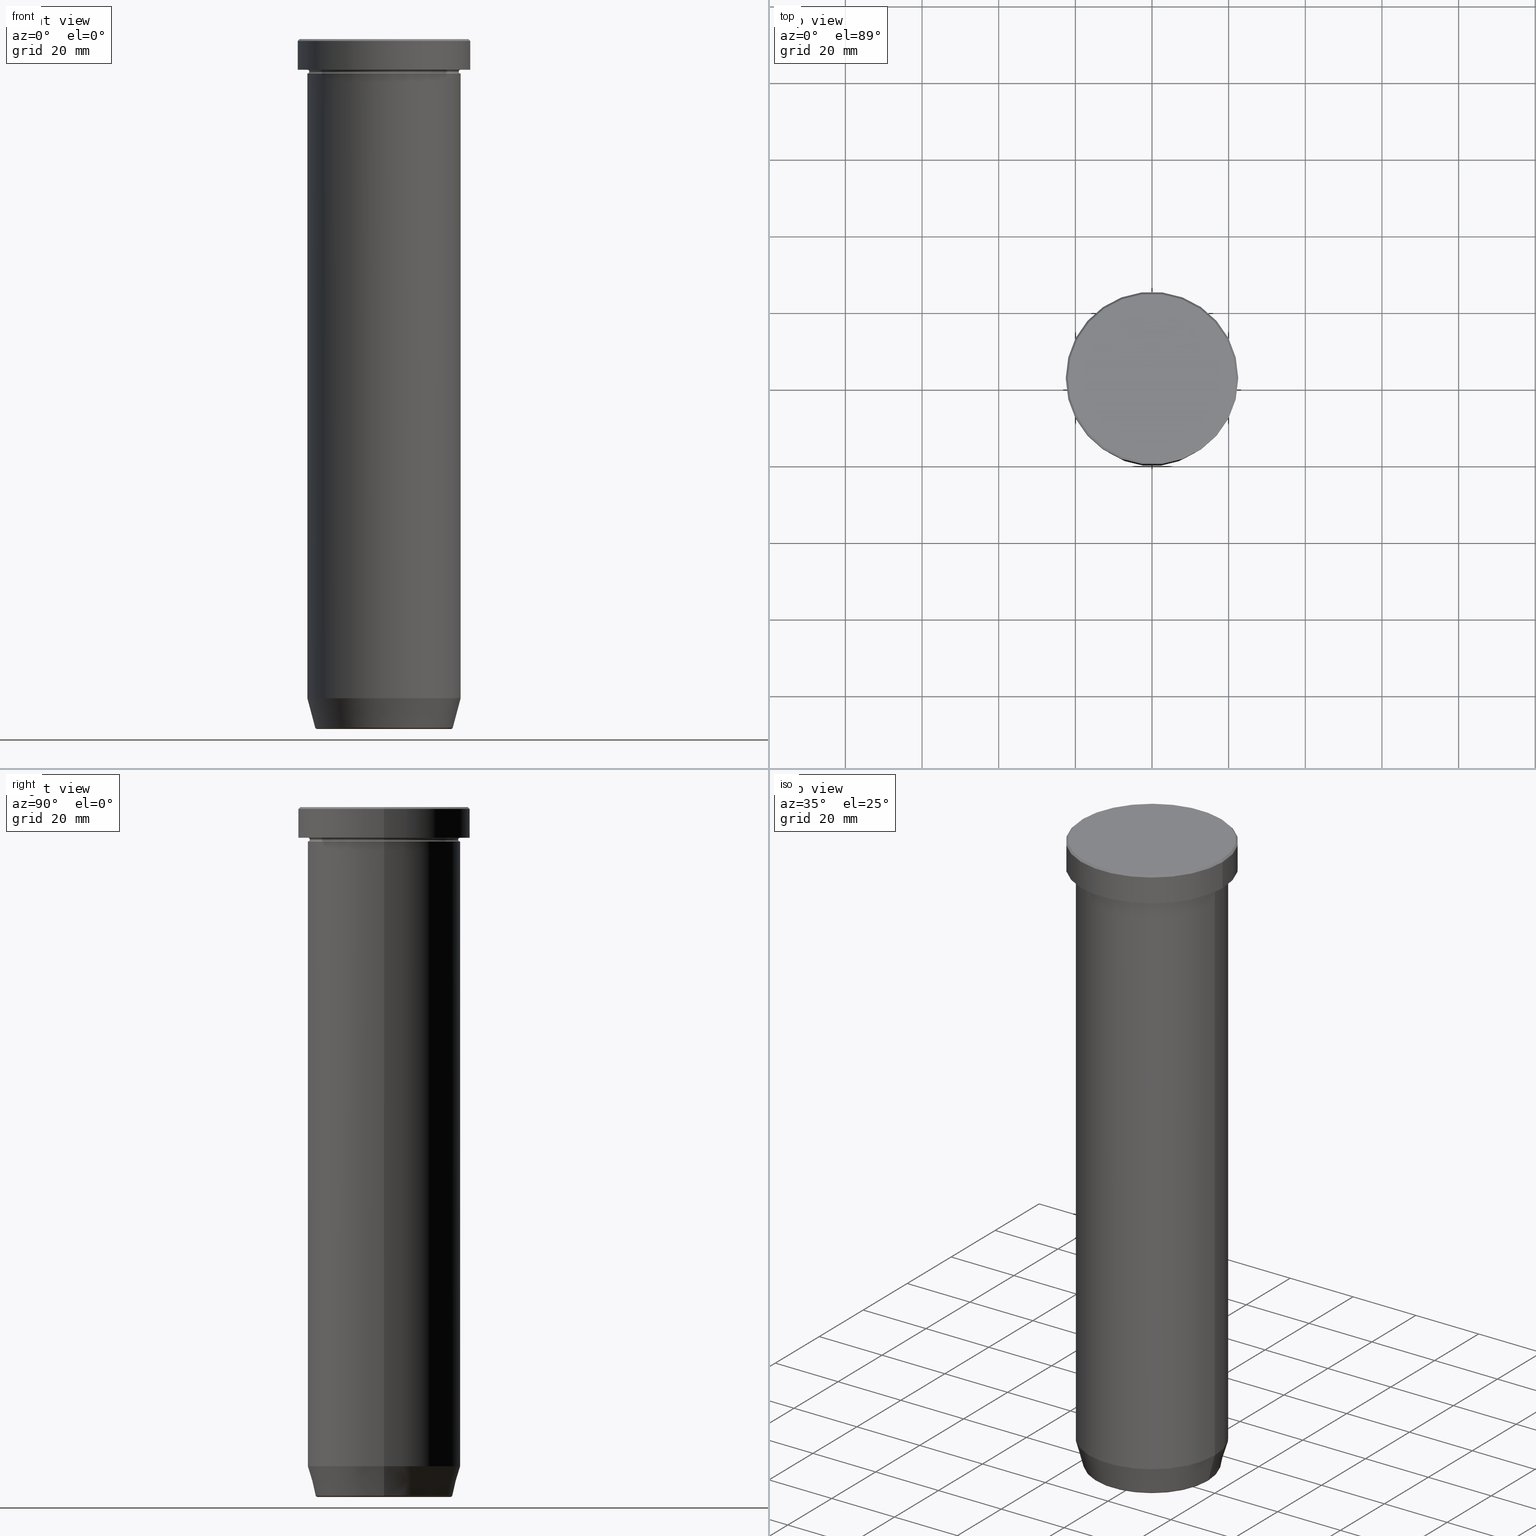
[diagram: canonical four-view strip — front | top / right | iso, engineering-drawing reading convention]
A machine part, canonical four-view strip (front | top / right | iso — engineering-drawing reading convention). The complete STEP part file that produces these views, byte-faithful:
ISO-10303-21;
HEADER;
FILE_DESCRIPTION (( 'STEP AP203' ),
    '1' );
FILE_NAME ('867e.STEP',
    '2024-01-02T19:12:58',
    ( '' ),
    ( '' ),
    'SwSTEP 2.0',
    'SolidWorks 2019',
    '' );
FILE_SCHEMA (( 'CONFIG_CONTROL_DESIGN' ));
ENDSEC;

DATA;
#1 = CARTESIAN_POINT ( 'NONE',  ( 0.000000000000000000, 0.000000000000000000, -8.999999999999998224 ) ) ;
#2 = DIRECTION ( 'NONE',  ( -0.000000000000000000, -0.000000000000000000, 1.000000000000000000 ) ) ;
#3 = AXIS2_PLACEMENT_3D ( 'NONE', #402, #166, #266 ) ;
#4 = ADVANCED_FACE ( 'NONE', ( #158 ), #428, .T. ) ;
#5 = DIRECTION ( 'NONE',  ( 1.000000000000000000, 0.000000000000000000, 0.000000000000000000 ) ) ;
#6 = CC_DESIGN_APPROVAL ( #221, ( #530 ) ) ;
#7 = EDGE_LOOP ( 'NONE', ( #441, #82, #424, #305 ) ) ;
#8 = CALENDAR_DATE ( 2024, 2, 1 ) ;
#9 = CARTESIAN_POINT ( 'NONE',  ( 0.000000000000000000, 20.00000000000000000, -45.00000000000000000 ) ) ;
#10 = ORIENTED_EDGE ( 'NONE', *, *, #352, .T. ) ;
#11 = CARTESIAN_POINT ( 'NONE',  ( -17.47274296656154391, 2.139793874632402355E-15, -179.5000000000000000 ) ) ;
#12 = CLOSED_SHELL ( 'NONE', ( #245, #48, #162, #29, #444, #4, #324, #263 ) ) ;
#13 = ORIENTED_EDGE ( 'NONE', *, *, #590, .T. ) ;
#14 = EDGE_CURVE ( 'NONE', #67, #89, #327, .T. ) ;
#15 = CARTESIAN_POINT ( 'NONE',  ( -20.00000000000000000, 2.449293598294706513E-15, -8.999999999999998224 ) ) ;
#16 = TOROIDAL_SURFACE ( 'NONE', #178, 20.00000000000000000, 0.5000000000000000000 ) ;
#17 = DIRECTION ( 'NONE',  ( -1.000000000000000000, 0.000000000000000000, -0.000000000000000000 ) ) ;
#18 = DIRECTION ( 'NONE',  ( -1.224646799147353207E-16, 1.000000000000000000, 0.000000000000000000 ) ) ;
#19 = ORIENTED_EDGE ( 'NONE', *, *, #370, .F. ) ;
#20 = DIRECTION ( 'NONE',  ( -0.000000000000000000, -0.000000000000000000, 1.000000000000000000 ) ) ;
#21 = ORIENTED_EDGE ( 'NONE', *, *, #570, .T. ) ;
#22 = EDGE_CURVE ( 'NONE', #241, #36, #417, .T. ) ;
#23 = CARTESIAN_POINT ( 'NONE',  ( 20.00000000000000000, 0.000000000000000000, -45.00000000000000000 ) ) ;
#24 = CARTESIAN_POINT ( 'NONE',  ( 20.00000000000000000, 0.000000000000000000, -45.00000000000000000 ) ) ;
#25 = AXIS2_PLACEMENT_3D ( 'NONE', #1, #285, #320 ) ;
#26 = ORIENTED_EDGE ( 'NONE', *, *, #14, .F. ) ;
#27 = DATE_TIME_ROLE ( 'creation_date' ) ;
#28 = DIRECTION ( 'NONE',  ( 1.000000000000000000, 0.000000000000000000, 0.000000000000000000 ) ) ;
#29 = ADVANCED_FACE ( 'NONE', ( #248 ), #342, .F. ) ;
#30 = PERSON_AND_ORGANIZATION_ROLE ( 'creator' ) ;
#31 = PLANE ( 'NONE',  #190 ) ;
#32 = ORIENTED_EDGE ( 'NONE', *, *, #331, .T. ) ;
#33 = CONICAL_SURFACE ( 'NONE', #539, 22.00000000000000711, 0.7853981633974482790 ) ;
#34 = CARTESIAN_POINT ( 'NONE',  ( 0.000000000000000000, 0.000000000000000000, -8.499999999999996447 ) ) ;
#35 = DIRECTION ( 'NONE',  ( 0.000000000000000000, -0.000000000000000000, 1.000000000000000000 ) ) ;
#36 = VERTEX_POINT ( 'NONE', #24 ) ;
#37 = PRODUCT_RELATED_PRODUCT_CATEGORY ( 'detail', '', ( #575 ) ) ;
#38 = CYLINDRICAL_SURFACE ( 'NONE', #508, 20.00000000000000355 ) ;
#39 = EDGE_LOOP ( 'NONE', ( #346, #55, #583, #192 ) ) ;
#40 = COORDINATED_UNIVERSAL_TIME_OFFSET ( 1, 0, .AHEAD. ) ;
#41 = FACE_OUTER_BOUND ( 'NONE', #150, .T. ) ;
#42 = SHAPE_DEFINITION_REPRESENTATION ( #119, #167 ) ;
#43 = AXIS2_PLACEMENT_3D ( 'NONE', #476, #149, #107 ) ;
#44 = CARTESIAN_POINT ( 'NONE',  ( 0.000000000000000000, 0.000000000000000000, -179.5000000000000000 ) ) ;
#45 = CC_DESIGN_PERSON_AND_ORGANIZATION_ASSIGNMENT ( #496, #239, ( #530 ) ) ;
#46 = CARTESIAN_POINT ( 'NONE',  ( 19.50000000000000000, 0.000000000000000000, -8.499999999999996447 ) ) ;
#47 = EDGE_CURVE ( 'NONE', #120, #461, #555, .T. ) ;
#48 = ADVANCED_FACE ( 'NONE', ( #64 ), #110, .T. ) ;
#49 = DATE_TIME_ROLE ( 'classification_date' ) ;
#50 = DIRECTION ( 'NONE',  ( 0.000000000000000000, 0.000000000000000000, -1.000000000000000000 ) ) ;
#51 = ORIENTED_EDGE ( 'NONE', *, *, #436, .F. ) ;
#52 = APPLICATION_CONTEXT ( 'configuration controlled 3d designs of mechanical parts and assemblies' ) ;
#53 = CIRCLE ( 'NONE', #156, 20.00000000000000000 ) ;
#54 = DIRECTION ( 'NONE',  ( -0.000000000000000000, -0.000000000000000000, 1.000000000000000000 ) ) ;
#55 = ORIENTED_EDGE ( 'NONE', *, *, #465, .T. ) ;
#56 = DATE_AND_TIME ( #8, #559 ) ;
#57 = ADVANCED_FACE ( 'NONE', ( #574, #154 ), #581, .T. ) ;
#58 = CARTESIAN_POINT ( 'NONE',  ( 0.000000000000000000, 0.000000000000000000, -45.00000000000000000 ) ) ;
#59 = ORIENTED_EDGE ( 'NONE', *, *, #456, .T. ) ;
#60 = DIRECTION ( 'NONE',  ( 1.000000000000000000, 0.000000000000000000, 0.000000000000000000 ) ) ;
#61 = AXIS2_PLACEMENT_3D ( 'NONE', #133, #132, #455 ) ;
#62 = ORIENTED_EDGE ( 'NONE', *, *, #498, .T. ) ;
#63 = TOROIDAL_SURFACE ( 'NONE', #400, 20.00000000000000000, 0.5000000000000000000 ) ;
#64 = FACE_OUTER_BOUND ( 'NONE', #39, .T. ) ;
#65 = TOROIDAL_SURFACE ( 'NONE', #147, 20.00000000000000000, 0.5000000000000000000 ) ;
#66 = CARTESIAN_POINT ( 'NONE',  ( 0.000000000000000000, 0.000000000000000000, 0.000000000000000000 ) ) ;
#67 = VERTEX_POINT ( 'NONE', #115 ) ;
#68 = EDGE_CURVE ( 'NONE', #521, #238, #111, .T. ) ;
#69 = FACE_OUTER_BOUND ( 'NONE', #470, .T. ) ;
#70 = CARTESIAN_POINT ( 'NONE',  ( 0.000000000000000000, 0.000000000000000000, -45.00000000000000000 ) ) ;
#71 = CYLINDRICAL_SURFACE ( 'NONE', #550, 20.00000000000000355 ) ;
#72 = DIRECTION ( 'NONE',  ( 0.000000000000000000, 0.000000000000000000, -1.000000000000000000 ) ) ;
#73 = AXIS2_PLACEMENT_3D ( 'NONE', #222, #595, #398 ) ;
#74 = CIRCLE ( 'NONE', #168, 20.00000000000000000 ) ;
#75 = ORIENTED_EDGE ( 'NONE', *, *, #172, .F. ) ;
#76 = PERSON_AND_ORGANIZATION ( #524, #304 ) ;
#77 = ADVANCED_FACE ( 'NONE', ( #445 ), #394, .T. ) ;
#78 = CARTESIAN_POINT ( 'NONE',  ( 0.000000000000000000, 0.000000000000000000, -45.00000000000000000 ) ) ;
#79 = DATE_AND_TIME ( #490, #519 ) ;
#80 = DIRECTION ( 'NONE',  ( -1.000000000000000000, 0.000000000000000000, 0.000000000000000000 ) ) ;
#81 = AXIS2_PLACEMENT_3D ( 'NONE', #78, #258, #17 ) ;
#82 = ORIENTED_EDGE ( 'NONE', *, *, #478, .T. ) ;
#83 = CARTESIAN_POINT ( 'NONE',  ( -20.00000000000000000, 2.449293598294706513E-15, 0.000000000000000000 ) ) ;
#84 = VECTOR ( 'NONE', #308, 1000.000000000000000 ) ;
#85 = CIRCLE ( 'NONE', #464, 20.00000000000000355 ) ;
#86 = VECTOR ( 'NONE', #482, 1000.000000000000114 ) ;
#87 = DIRECTION ( 'NONE',  ( -0.000000000000000000, -0.000000000000000000, 1.000000000000000000 ) ) ;
#88 = CARTESIAN_POINT ( 'NONE',  ( 17.95570587970608045, 0.000000000000000000, -179.6294095225512422 ) ) ;
#89 = VERTEX_POINT ( 'NONE', #497 ) ;
#90 = MANIFOLD_SOLID_BREP ( 'Zaoblit4', #12 ) ;
#91 = APPROVAL_ROLE ( '' ) ;
#92 = DIRECTION ( 'NONE',  ( -0.000000000000000000, -0.000000000000000000, 1.000000000000000000 ) ) ;
#93 = EDGE_LOOP ( 'NONE', ( #282, #264 ) ) ;
#94 = FACE_OUTER_BOUND ( 'NONE', #597, .T. ) ;
#95 = VECTOR ( 'NONE', #87, 1000.000000000000000 ) ;
#96 = DIRECTION ( 'NONE',  ( 0.000000000000000000, 0.000000000000000000, -1.000000000000000000 ) ) ;
#97 = ADVANCED_FACE ( 'NONE', ( #355 ), #547, .T. ) ;
#98 = ADVANCED_FACE ( 'NONE', ( #408 ), #31, .T. ) ;
#99 = CARTESIAN_POINT ( 'NONE',  ( 0.000000000000000000, 0.000000000000000000, -8.499999999999996447 ) ) ;
#100 = AXIS2_PLACEMENT_3D ( 'NONE', #593, #173, #359 ) ;
#101 = DIRECTION ( 'NONE',  ( 1.000000000000000000, 0.000000000000000000, 0.000000000000000000 ) ) ;
#102 = VERTEX_POINT ( 'NONE', #448 ) ;
#103 = AXIS2_PLACEMENT_3D ( 'NONE', #9, #144, #517 ) ;
#104 = CARTESIAN_POINT ( 'NONE',  ( 0.000000000000000000, 0.000000000000000000, -172.0000000000000000 ) ) ;
#105 = APPROVAL_PERSON_ORGANIZATION ( #447, #236, #91 ) ;
#106 = EDGE_LOOP ( 'NONE', ( #518, #535 ) ) ;
#107 = DIRECTION ( 'NONE',  ( -1.000000000000000000, 1.224646799147349509E-16, 0.000000000000000000 ) ) ;
#108 = ORIENTED_EDGE ( 'NONE', *, *, #379, .T. ) ;
#109 = CARTESIAN_POINT ( 'NONE',  ( -20.00000000000000355, 2.449293598294706907E-15, -172.0000000000000000 ) ) ;
#110 = CONICAL_SURFACE ( 'NONE', #526, 17.85640646055102110, 0.2617993877991491858 ) ;
#111 = CIRCLE ( 'NONE', #495, 0.5000000000000004441 ) ;
#112 = EDGE_LOOP ( 'NONE', ( #289, #301, #32, #494 ) ) ;
#113 = CARTESIAN_POINT ( 'NONE',  ( 0.000000000000000000, 0.000000000000000000, -179.6294095225512422 ) ) ;
#114 = AXIS2_PLACEMENT_3D ( 'NONE', #426, #182, #512 ) ;
#115 = CARTESIAN_POINT ( 'NONE',  ( -22.00000000000000711, 0.000000000000000000, 0.000000000000000000 ) ) ;
#116 = EDGE_CURVE ( 'NONE', #351, #403, #507, .T. ) ;
#117 = AXIS2_PLACEMENT_3D ( 'NONE', #457, #358, #546 ) ;
#118 = DIRECTION ( 'NONE',  ( -0.000000000000000000, -0.000000000000000000, 1.000000000000000000 ) ) ;
#119 = PRODUCT_DEFINITION_SHAPE ( 'NONE', 'NONE',  #343 ) ;
#120 = VERTEX_POINT ( 'NONE', #88 ) ;
#121 = CARTESIAN_POINT ( 'NONE',  ( 0.000000000000000000, 0.000000000000000000, -8.499999999999998224 ) ) ;
#122 = DIRECTION ( 'NONE',  ( -1.000000000000000000, 0.000000000000000000, -0.000000000000000000 ) ) ;
#123 = AXIS2_PLACEMENT_3D ( 'NONE', #477, #205, #532 ) ;
#124 = EDGE_LOOP ( 'NONE', ( #134, #350 ) ) ;
#125 = ADVANCED_FACE ( 'NONE', ( #94 ), #541, .T. ) ;
#126 = MECHANICAL_CONTEXT ( 'NONE', #52, 'mechanical' ) ;
#127 = ORIENTED_EDGE ( 'NONE', *, *, #138, .F. ) ;
#128 = CIRCLE ( 'NONE', #538, 22.50000000000000000 ) ;
#129 = FACE_OUTER_BOUND ( 'NONE', #475, .T. ) ;
#130 = ORIENTED_EDGE ( 'NONE', *, *, #219, .F. ) ;
#131 = PERSON_AND_ORGANIZATION_ROLE ( 'design_supplier' ) ;
#132 = DIRECTION ( 'NONE',  ( -0.000000000000000000, -0.000000000000000000, 1.000000000000000000 ) ) ;
#133 = CARTESIAN_POINT ( 'NONE',  ( 0.000000000000000000, 0.000000000000000000, 0.000000000000000000 ) ) ;
#134 = ORIENTED_EDGE ( 'NONE', *, *, #407, .T. ) ;
#135 = DIRECTION ( 'NONE',  ( 0.000000000000000000, 0.000000000000000000, -1.000000000000000000 ) ) ;
#136 = ORIENTED_EDGE ( 'NONE', *, *, #456, .F. ) ;
#137 = CARTESIAN_POINT ( 'NONE',  ( 0.000000000000000000, 0.000000000000000000, 0.000000000000000000 ) ) ;
#138 = EDGE_CURVE ( 'NONE', #351, #389, #360, .T. ) ;
#139 = DIRECTION ( 'NONE',  ( -0.000000000000000000, -0.000000000000000000, 1.000000000000000000 ) ) ;
#140 = CARTESIAN_POINT ( 'NONE',  ( 0.000000000000000000, 0.000000000000000000, -8.999999999999998224 ) ) ;
#141 = DIRECTION ( 'NONE',  ( 1.000000000000000000, 0.000000000000000000, 0.000000000000000000 ) ) ;
#142 = ORIENTED_EDGE ( 'NONE', *, *, #570, .F. ) ;
#143 = CC_DESIGN_DATE_AND_TIME_ASSIGNMENT ( #257, #27, ( #343 ) ) ;
#144 = DIRECTION ( 'NONE',  ( 0.000000000000000000, 0.000000000000000000, -1.000000000000000000 ) ) ;
#145 = ORIENTED_EDGE ( 'NONE', *, *, #331, .F. ) ;
#146 = AXIS2_PLACEMENT_3D ( 'NONE', #468, #184, #231 ) ;
#147 = AXIS2_PLACEMENT_3D ( 'NONE', #34, #218, #212 ) ;
#148 = ORIENTED_EDGE ( 'NONE', *, *, #307, .T. ) ;
#149 = DIRECTION ( 'NONE',  ( 1.224646799147353207E-16, 1.000000000000000000, 0.000000000000000000 ) ) ;
#150 = EDGE_LOOP ( 'NONE', ( #568, #26, #565, #51 ) ) ;
#151 = ADVANCED_FACE ( 'NONE', ( #41 ), #174, .T. ) ;
#152 = DIRECTION ( 'NONE',  ( 1.000000000000000000, 0.000000000000000000, 0.000000000000000000 ) ) ;
#153 = EDGE_CURVE ( 'NONE', #296, #102, #439, .T. ) ;
#154 = FACE_OUTER_BOUND ( 'NONE', #420, .T. ) ;
#155 = DIRECTION ( 'NONE',  ( 1.000000000000000000, 0.000000000000000000, 0.000000000000000000 ) ) ;
#156 = AXIS2_PLACEMENT_3D ( 'NONE', #140, #471, #281 ) ;
#157 = AXIS2_PLACEMENT_3D ( 'NONE', #160, #206, #60 ) ;
#158 = FACE_OUTER_BOUND ( 'NONE', #7, .T. ) ;
#159 = VECTOR ( 'NONE', #484, 1000.000000000000000 ) ;
#160 = CARTESIAN_POINT ( 'NONE',  ( 0.000000000000000000, 0.000000000000000000, -8.499999999999996447 ) ) ;
#161 = CARTESIAN_POINT ( 'NONE',  ( 0.000000000000000000, 22.50000000000000000, -7.999999999999998224 ) ) ;
#162 = ADVANCED_FACE ( 'NONE', ( #129 ), #38, .T. ) ;
#163 = DIRECTION ( 'NONE',  ( 0.000000000000000000, 0.000000000000000000, -1.000000000000000000 ) ) ;
#164 = ORIENTED_EDGE ( 'NONE', *, *, #116, .F. ) ;
#165 = COORDINATED_UNIVERSAL_TIME_OFFSET ( 1, 0, .AHEAD. ) ;
#166 = DIRECTION ( 'NONE',  ( -0.000000000000000000, -0.000000000000000000, 1.000000000000000000 ) ) ;
#167 = ADVANCED_BREP_SHAPE_REPRESENTATION ( '867e', ( #274, #90, #117 ), #481 ) ;
#168 = AXIS2_PLACEMENT_3D ( 'NONE', #254, #118, #580 ) ;
#169 = CARTESIAN_POINT ( 'NONE',  ( -22.50000000000000000, 2.755455298081544778E-15, 0.000000000000000000 ) ) ;
#170 = DIRECTION ( 'NONE',  ( 1.000000000000000000, 0.000000000000000000, 0.000000000000000000 ) ) ;
#171 = DESIGN_CONTEXT ( 'detailed design', #313, 'design' ) ;
#172 = EDGE_CURVE ( 'NONE', #438, #120, #223, .T. ) ;
#173 = DIRECTION ( 'NONE',  ( -0.000000000000000000, -0.000000000000000000, 1.000000000000000000 ) ) ;
#174 = CONICAL_SURFACE ( 'NONE', #514, 22.00000000000000711, 0.7853981633974482790 ) ;
#175 = ORIENTED_EDGE ( 'NONE', *, *, #309, .T. ) ;
#176 =( NAMED_UNIT ( * ) PLANE_ANGLE_UNIT ( ) SI_UNIT ( $, .RADIAN. ) );
#177 = LINE ( 'NONE', #551, #84 ) ;
#178 = AXIS2_PLACEMENT_3D ( 'NONE', #121, #243, #249 ) ;
#179 = ORIENTED_EDGE ( 'NONE', *, *, #68, .T. ) ;
#180 = DIRECTION ( 'NONE',  ( 1.000000000000000000, 0.000000000000000000, 0.000000000000000000 ) ) ;
#181 = EDGE_CURVE ( 'NONE', #238, #316, #586, .T. ) ;
#182 = DIRECTION ( 'NONE',  ( -0.000000000000000000, -0.000000000000000000, 1.000000000000000000 ) ) ;
#183 = COORDINATED_UNIVERSAL_TIME_OFFSET ( 1, 0, .AHEAD. ) ;
#184 = DIRECTION ( 'NONE',  ( -0.000000000000000000, -0.000000000000000000, 1.000000000000000000 ) ) ;
#185 = AXIS2_PLACEMENT_3D ( 'NONE', #113, #523, #571 ) ;
#186 = CC_DESIGN_DATE_AND_TIME_ASSIGNMENT ( #376, #49, ( #530 ) ) ;
#187 = CARTESIAN_POINT ( 'NONE',  ( 20.00000000000000355, 0.000000000000000000, 0.000000000000000000 ) ) ;
#188 = ORIENTED_EDGE ( 'NONE', *, *, #479, .F. ) ;
#189 = EDGE_LOOP ( 'NONE', ( #195, #273, #577, #75 ) ) ;
#190 = AXIS2_PLACEMENT_3D ( 'NONE', #501, #35, #319 ) ;
#191 = CARTESIAN_POINT ( 'NONE',  ( -17.47274296656154391, 2.169366823916869292E-15, -180.0000000000000000 ) ) ;
#192 = ORIENTED_EDGE ( 'NONE', *, *, #544, .F. ) ;
#193 = CIRCLE ( 'NONE', #558, 0.5000000000000004441 ) ;
#194 = CARTESIAN_POINT ( 'NONE',  ( 20.00000000000000000, 0.000000000000000000, -8.999999999999998224 ) ) ;
#195 = ORIENTED_EDGE ( 'NONE', *, *, #217, .F. ) ;
#196 = EDGE_CURVE ( 'NONE', #491, #241, #177, .T. ) ;
#197 = EDGE_CURVE ( 'NONE', #89, #67, #529, .T. ) ;
#198 = DIRECTION ( 'NONE',  ( -1.000000000000000000, 0.000000000000000000, 0.000000000000000000 ) ) ;
#199 = DIRECTION ( 'NONE',  ( -0.000000000000000000, -0.000000000000000000, 1.000000000000000000 ) ) ;
#200 = FACE_OUTER_BOUND ( 'NONE', #244, .T. ) ;
#201 = AXIS2_PLACEMENT_3D ( 'NONE', #314, #220, #405 ) ;
#202 = EDGE_LOOP ( 'NONE', ( #553, #409, #108, #542 ) ) ;
#203 = CARTESIAN_POINT ( 'NONE',  ( 0.000000000000000000, 0.000000000000000000, 0.000000000000000000 ) ) ;
#204 = VECTOR ( 'NONE', #374, 1000.000000000000000 ) ;
#205 = DIRECTION ( 'NONE',  ( -0.000000000000000000, -0.000000000000000000, 1.000000000000000000 ) ) ;
#206 = DIRECTION ( 'NONE',  ( -0.000000000000000000, -0.000000000000000000, 1.000000000000000000 ) ) ;
#207 = ORIENTED_EDGE ( 'NONE', *, *, #196, .T. ) ;
#208 = ORIENTED_EDGE ( 'NONE', *, *, #479, .T. ) ;
#209 = PERSON_AND_ORGANIZATION ( #524, #304 ) ;
#210 = DIRECTION ( 'NONE',  ( 0.000000000000000000, -1.000000000000000000, 0.000000000000000000 ) ) ;
#211 = AXIS2_PLACEMENT_3D ( 'NONE', #70, #572, #293 ) ;
#212 = DIRECTION ( 'NONE',  ( 1.000000000000000000, 0.000000000000000000, 0.000000000000000000 ) ) ;
#213 = CARTESIAN_POINT ( 'NONE',  ( 0.000000000000000000, 0.000000000000000000, -8.499999999999996447 ) ) ;
#214 = AXIS2_PLACEMENT_3D ( 'NONE', #380, #377, #141 ) ;
#215 = APPROVAL_PERSON_ORGANIZATION ( #554, #221, #466 ) ;
#216 = ORIENTED_EDGE ( 'NONE', *, *, #68, .F. ) ;
#217 = EDGE_CURVE ( 'NONE', #318, #438, #510, .T. ) ;
#218 = DIRECTION ( 'NONE',  ( -0.000000000000000000, -0.000000000000000000, 1.000000000000000000 ) ) ;
#219 = EDGE_CURVE ( 'NONE', #316, #238, #412, .T. ) ;
#220 = DIRECTION ( 'NONE',  ( -0.000000000000000000, -0.000000000000000000, 1.000000000000000000 ) ) ;
#221 = APPROVAL ( #563, 'NEUR�EN�' ) ;
#222 = CARTESIAN_POINT ( 'NONE',  ( 0.000000000000000000, 0.000000000000000000, -7.999999999999998224 ) ) ;
#223 = CIRCLE ( 'NONE', #291, 0.5000000000000004441 ) ;
#224 = EDGE_LOOP ( 'NONE', ( #381, #234, #21, #505 ) ) ;
#225 = DIRECTION ( 'NONE',  ( -0.000000000000000000, -0.000000000000000000, 1.000000000000000000 ) ) ;
#226 = CARTESIAN_POINT ( 'NONE',  ( 0.000000000000000000, 0.000000000000000000, -7.999999999999998224 ) ) ;
#227 = ADVANCED_FACE ( 'NONE', ( #261 ), #63, .F. ) ;
#228 = UNCERTAINTY_MEASURE_WITH_UNIT (LENGTH_MEASURE( 1.000000000000000082E-05 ), #592, 'distance_accuracy_value', 'NONE');
#229 = AXIS2_PLACEMENT_3D ( 'NONE', #11, #329, #240 ) ;
#230 = AXIS2_PLACEMENT_3D ( 'NONE', #295, #18, #292 ) ;
#231 = DIRECTION ( 'NONE',  ( 1.000000000000000000, 0.000000000000000000, 0.000000000000000000 ) ) ;
#232 = CARTESIAN_POINT ( 'NONE',  ( 22.00000000000000711, 2.694222958124177598E-15, 0.000000000000000000 ) ) ;
#233 = FACE_OUTER_BOUND ( 'NONE', #548, .T. ) ;
#234 = ORIENTED_EDGE ( 'NONE', *, *, #587, .T. ) ;
#235 = AXIS2_PLACEMENT_3D ( 'NONE', #411, #317, #599 ) ;
#236 = APPROVAL ( #503, 'NEUR�EN�' ) ;
#237 = FACE_OUTER_BOUND ( 'NONE', #430, .T. ) ;
#238 = VERTEX_POINT ( 'NONE', #451 ) ;
#239 = PERSON_AND_ORGANIZATION_ROLE ( 'classification_officer' ) ;
#240 = DIRECTION ( 'NONE',  ( -1.000000000000000000, 1.224646799147349509E-16, 0.000000000000000000 ) ) ;
#241 = VERTEX_POINT ( 'NONE', #357 ) ;
#242 = AXIS2_PLACEMENT_3D ( 'NONE', #528, #199, #537 ) ;
#243 = DIRECTION ( 'NONE',  ( 0.000000000000000000, 0.000000000000000000, -1.000000000000000000 ) ) ;
#244 = EDGE_LOOP ( 'NONE', ( #499, #208, #250, #216 ) ) ;
#245 = ADVANCED_FACE ( 'NONE', ( #520 ), #419, .T. ) ;
#246 = AXIS2_PLACEMENT_3D ( 'NONE', #504, #366, #80 ) ;
#247 = LINE ( 'NONE', #393, #284 ) ;
#248 = FACE_OUTER_BOUND ( 'NONE', #310, .T. ) ;
#249 = DIRECTION ( 'NONE',  ( -1.000000000000000000, 0.000000000000000000, 0.000000000000000000 ) ) ;
#250 = ORIENTED_EDGE ( 'NONE', *, *, #181, .F. ) ;
#251 = FACE_OUTER_BOUND ( 'NONE', #202, .T. ) ;
#252 = ORIENTED_EDGE ( 'NONE', *, *, #371, .T. ) ;
#253 = EDGE_LOOP ( 'NONE', ( #515, #13, #10, #142 ) ) ;
#254 = CARTESIAN_POINT ( 'NONE',  ( 0.000000000000000000, 0.000000000000000000, -45.00000000000000000 ) ) ;
#255 = AXIS2_PLACEMENT_3D ( 'NONE', #99, #2, #372 ) ;
#256 = DIRECTION ( 'NONE',  ( 1.000000000000000000, 0.000000000000000000, 0.000000000000000000 ) ) ;
#257 = DATE_AND_TIME ( #589, #454 ) ;
#258 = DIRECTION ( 'NONE',  ( 0.000000000000000000, 0.000000000000000000, -1.000000000000000000 ) ) ;
#259 = ORIENTED_EDGE ( 'NONE', *, *, #138, .T. ) ;
#260 = DATE_AND_TIME ( #353, #442 ) ;
#261 = FACE_OUTER_BOUND ( 'NONE', #486, .T. ) ;
#262 = EDGE_CURVE ( 'NONE', #318, #461, #283, .T. ) ;
#263 = ADVANCED_FACE ( 'NONE', ( #233 ), #339, .T. ) ;
#264 = ORIENTED_EDGE ( 'NONE', *, *, #219, .T. ) ;
#265 = APPROVAL_DATE_TIME ( #79, #236 ) ;
#266 = DIRECTION ( 'NONE',  ( 1.000000000000000000, 0.000000000000000000, 0.000000000000000000 ) ) ;
#267 = AXIS2_PLACEMENT_3D ( 'NONE', #410, #225, #584 ) ;
#268 = DIRECTION ( 'NONE',  ( -1.000000000000000000, 0.000000000000000000, 0.000000000000000000 ) ) ;
#269 = ORIENTED_EDGE ( 'NONE', *, *, #22, .T. ) ;
#270 = EDGE_CURVE ( 'NONE', #446, #403, #567, .T. ) ;
#271 = COORDINATED_UNIVERSAL_TIME_OFFSET ( 1, 0, .AHEAD. ) ;
#272 = DIRECTION ( 'NONE',  ( -0.000000000000000000, -0.000000000000000000, 1.000000000000000000 ) ) ;
#273 = ORIENTED_EDGE ( 'NONE', *, *, #262, .T. ) ;
#274 = MANIFOLD_SOLID_BREP ( 'Zkosen�1', #347 ) ;
#275 = DIRECTION ( 'NONE',  ( -0.000000000000000000, -0.000000000000000000, 1.000000000000000000 ) ) ;
#276 = AXIS2_PLACEMENT_3D ( 'NONE', #58, #275, #463 ) ;
#277 = CALENDAR_DATE ( 2024, 2, 1 ) ;
#278 = CARTESIAN_POINT ( 'NONE',  ( 20.00000000000000000, 0.000000000000000000, 0.000000000000000000 ) ) ;
#279 = CARTESIAN_POINT ( 'NONE',  ( -22.50000000000000000, 2.755455298081544778E-15, -0.4999999999999935052 ) ) ;
#280 = EDGE_CURVE ( 'NONE', #403, #446, #53, .T. ) ;
#281 = DIRECTION ( 'NONE',  ( 1.000000000000000000, 0.000000000000000000, 0.000000000000000000 ) ) ;
#282 = ORIENTED_EDGE ( 'NONE', *, *, #181, .T. ) ;
#283 = CIRCLE ( 'NONE', #229, 0.5000000000000004441 ) ;
#284 = VECTOR ( 'NONE', #383, 1000.000000000000000 ) ;
#285 = DIRECTION ( 'NONE',  ( -0.000000000000000000, -0.000000000000000000, 1.000000000000000000 ) ) ;
#286 = ORIENTED_EDGE ( 'NONE', *, *, #407, .F. ) ;
#287 = EDGE_CURVE ( 'NONE', #89, #361, #333, .T. ) ;
#288 = DIRECTION ( 'NONE',  ( -1.000000000000000000, 0.000000000000000000, 0.000000000000000000 ) ) ;
#289 = ORIENTED_EDGE ( 'NONE', *, *, #498, .F. ) ;
#290 = AXIS2_PLACEMENT_3D ( 'NONE', #534, #299, #485 ) ;
#291 = AXIS2_PLACEMENT_3D ( 'NONE', #545, #210, #135 ) ;
#292 = DIRECTION ( 'NONE',  ( -1.000000000000000000, -1.224646799147349509E-16, 0.000000000000000000 ) ) ;
#293 = DIRECTION ( 'NONE',  ( 1.000000000000000000, 0.000000000000000000, 0.000000000000000000 ) ) ;
#294 = AXIS2_PLACEMENT_3D ( 'NONE', #44, #54, #101 ) ;
#295 = CARTESIAN_POINT ( 'NONE',  ( 20.00000000000000000, 2.449293598294706513E-15, -8.499999999999998224 ) ) ;
#296 = VERTEX_POINT ( 'NONE', #414 ) ;
#297 = APPROVAL ( #543, 'NEUR�EN�' ) ;
#298 = CARTESIAN_POINT ( 'NONE',  ( 17.85640646055102110, 0.000000000000000000, -180.0000000000000000 ) ) ;
#299 = DIRECTION ( 'NONE',  ( -0.000000000000000000, -0.000000000000000000, 1.000000000000000000 ) ) ;
#300 = DIRECTION ( 'NONE',  ( 0.000000000000000000, 0.000000000000000000, -1.000000000000000000 ) ) ;
#301 = ORIENTED_EDGE ( 'NONE', *, *, #371, .F. ) ;
#302 = PERSON_AND_ORGANIZATION_ROLE ( 'design_owner' ) ;
#303 = AXIS2_PLACEMENT_3D ( 'NONE', #573, #300, #531 ) ;
#304 = ORGANIZATION ( 'NEUR�EN�', 'NEUR�EN�', '' ) ;
#305 = ORIENTED_EDGE ( 'NONE', *, *, #323, .F. ) ;
#306 = ORIENTED_EDGE ( 'NONE', *, *, #587, .F. ) ;
#307 = EDGE_CURVE ( 'NONE', #389, #446, #368, .T. ) ;
#308 = DIRECTION ( 'NONE',  ( -0.000000000000000000, -0.000000000000000000, 1.000000000000000000 ) ) ;
#309 = EDGE_CURVE ( 'NONE', #336, #491, #85, .T. ) ;
#310 = EDGE_LOOP ( 'NONE', ( #59, #269 ) ) ;
#311 = SECURITY_CLASSIFICATION_LEVEL ( 'unclassified' ) ;
#312 = CARTESIAN_POINT ( 'NONE',  ( 0.000000000000000000, 0.000000000000000000, 0.000000000000000000 ) ) ;
#313 = APPLICATION_CONTEXT ( 'configuration controlled 3d designs of mechanical parts and assemblies' ) ;
#314 = CARTESIAN_POINT ( 'NONE',  ( 0.000000000000000000, 0.000000000000000000, 0.000000000000000000 ) ) ;
#315 = APPROVAL_PERSON_ORGANIZATION ( #209, #297, #397 ) ;
#316 = VERTEX_POINT ( 'NONE', #564 ) ;
#317 = DIRECTION ( 'NONE',  ( -0.000000000000000000, -0.000000000000000000, 1.000000000000000000 ) ) ;
#318 = VERTEX_POINT ( 'NONE', #191 ) ;
#319 = DIRECTION ( 'NONE',  ( 1.000000000000000000, 0.000000000000000000, 0.000000000000000000 ) ) ;
#320 = DIRECTION ( 'NONE',  ( 1.000000000000000000, 0.000000000000000000, 0.000000000000000000 ) ) ;
#321 = AXIS2_PLACEMENT_3D ( 'NONE', #66, #527, #155 ) ;
#322 = CARTESIAN_POINT ( 'NONE',  ( -20.00000000000000000, 2.449293598294706513E-15, -45.00000000000000000 ) ) ;
#323 = EDGE_CURVE ( 'NONE', #491, #336, #500, .T. ) ;
#324 = ADVANCED_FACE ( 'NONE', ( #560 ), #467, .F. ) ;
#325 = DIRECTION ( 'NONE',  ( 1.000000000000000000, 0.000000000000000000, 0.000000000000000000 ) ) ;
#326 = ORIENTED_EDGE ( 'NONE', *, *, #287, .T. ) ;
#327 = CIRCLE ( 'NONE', #290, 22.00000000000000711 ) ;
#328 = AXIS2_PLACEMENT_3D ( 'NONE', #226, #363, #458 ) ;
#329 = DIRECTION ( 'NONE',  ( 1.224646799147353207E-16, 1.000000000000000000, 0.000000000000000000 ) ) ;
#330 = ORIENTED_EDGE ( 'NONE', *, *, #262, .F. ) ;
#331 = EDGE_CURVE ( 'NONE', #334, #446, #193, .T. ) ;
#332 = AXIS2_PLACEMENT_3D ( 'NONE', #576, #335, #198 ) ;
#333 = LINE ( 'NONE', #232, #480 ) ;
#334 = VERTEX_POINT ( 'NONE', #46 ) ;
#335 = DIRECTION ( 'NONE',  ( 0.000000000000000000, 0.000000000000000000, -1.000000000000000000 ) ) ;
#336 = VERTEX_POINT ( 'NONE', #418 ) ;
#337 = CYLINDRICAL_SURFACE ( 'NONE', #321, 20.00000000000000000 ) ;
#338 = DIRECTION ( 'NONE',  ( -0.000000000000000000, -0.000000000000000000, 1.000000000000000000 ) ) ;
#339 = TOROIDAL_SURFACE ( 'NONE', #146, 17.47274296656154391, 0.5000000000000000000 ) ;
#340 = VECTOR ( 'NONE', #139, 1000.000000000000000 ) ;
#341 = CC_DESIGN_SECURITY_CLASSIFICATION ( #530, ( #382 ) ) ;
#342 = PLANE ( 'NONE',  #81 ) ;
#343 = PRODUCT_DEFINITION ( 'NEZN�M�', '', #382, #171 ) ;
#344 = LINE ( 'NONE', #433, #86 ) ;
#345 = DIRECTION ( 'NONE',  ( 0.000000000000000000, 0.000000000000000000, -1.000000000000000000 ) ) ;
#346 = ORIENTED_EDGE ( 'NONE', *, *, #47, .T. ) ;
#347 = CLOSED_SHELL ( 'NONE', ( #415, #522, #227, #435, #77, #387, #98, #97, #57, #125, #552, #395, #151 ) ) ;
#348 = DIRECTION ( 'NONE',  ( 1.000000000000000000, 0.000000000000000000, 0.000000000000000000 ) ) ;
#349 = VECTOR ( 'NONE', #92, 1000.000000000000000 ) ;
#350 = ORIENTED_EDGE ( 'NONE', *, *, #217, .T. ) ;
#351 = VERTEX_POINT ( 'NONE', #322 ) ;
#352 = EDGE_CURVE ( 'NONE', #375, #361, #128, .T. ) ;
#353 = CALENDAR_DATE ( 2024, 2, 1 ) ;
#354 = CIRCLE ( 'NONE', #157, 19.50000000000000000 ) ;
#355 = FACE_OUTER_BOUND ( 'NONE', #224, .T. ) ;
#356 = PERSON_AND_ORGANIZATION ( #524, #304 ) ;
#357 = CARTESIAN_POINT ( 'NONE',  ( -20.00000000000000000, 2.449293598294706513E-15, -45.00000000000000000 ) ) ;
#358 = DIRECTION ( 'NONE',  ( 0.000000000000000000, 0.000000000000000000, 1.000000000000000000 ) ) ;
#359 = DIRECTION ( 'NONE',  ( 1.000000000000000000, 0.000000000000000000, 0.000000000000000000 ) ) ;
#360 = CIRCLE ( 'NONE', #100, 20.00000000000000000 ) ;
#361 = VERTEX_POINT ( 'NONE', #416 ) ;
#362 = APPLICATION_PROTOCOL_DEFINITION ( 'international standard', 'config_control_design', 1994, #313 ) ;
#363 = DIRECTION ( 'NONE',  ( -0.000000000000000000, -0.000000000000000000, 1.000000000000000000 ) ) ;
#364 = CIRCLE ( 'NONE', #276, 20.00000000000000000 ) ;
#365 = ORIENTED_EDGE ( 'NONE', *, *, #270, .F. ) ;
#366 = DIRECTION ( 'NONE',  ( -0.000000000000000000, -0.000000000000000000, 1.000000000000000000 ) ) ;
#367 = CC_DESIGN_PERSON_AND_ORGANIZATION_ASSIGNMENT ( #356, #131, ( #382 ) ) ;
#368 = LINE ( 'NONE', #278, #340 ) ;
#369 = AXIS2_PLACEMENT_3D ( 'NONE', #161, #345, #122 ) ;
#370 = EDGE_CURVE ( 'NONE', #389, #351, #364, .T. ) ;
#371 = EDGE_CURVE ( 'NONE', #334, #521, #431, .T. ) ;
#372 = DIRECTION ( 'NONE',  ( 1.000000000000000000, 0.000000000000000000, 0.000000000000000000 ) ) ;
#373 = CIRCLE ( 'NONE', #267, 22.50000000000000000 ) ;
#374 = DIRECTION ( 'NONE',  ( -0.000000000000000000, -0.000000000000000000, 1.000000000000000000 ) ) ;
#375 = VERTEX_POINT ( 'NONE', #279 ) ;
#376 = DATE_AND_TIME ( #277, #579 ) ;
#377 = DIRECTION ( 'NONE',  ( 0.000000000000000000, -0.000000000000000000, 1.000000000000000000 ) ) ;
#378 = ORIENTED_EDGE ( 'NONE', *, *, #478, .F. ) ;
#379 = EDGE_CURVE ( 'NONE', #336, #36, #557, .T. ) ;
#380 = CARTESIAN_POINT ( 'NONE',  ( 0.000000000000000000, 1.592040838891559450E-14, -180.0000000000000000 ) ) ;
#381 = ORIENTED_EDGE ( 'NONE', *, *, #590, .F. ) ;
#382 = PRODUCT_DEFINITION_FORMATION_WITH_SPECIFIED_SOURCE ( 'LIBOVOLN�', '', #575, .NOT_KNOWN. ) ;
#383 = DIRECTION ( 'NONE',  ( -0.2588190451025205174, 3.169619151431761860E-17, 0.9659258262890684232 ) ) ;
#384 = ORIENTED_EDGE ( 'NONE', *, *, #516, .F. ) ;
#385 = LINE ( 'NONE', #298, #159 ) ;
#386 = CARTESIAN_POINT ( 'NONE',  ( 0.000000000000000000, 0.000000000000000000, -180.0000000000000000 ) ) ;
#387 = ADVANCED_FACE ( 'NONE', ( #237 ), #423, .T. ) ;
#388 = FACE_OUTER_BOUND ( 'NONE', #525, .T. ) ;
#389 = VERTEX_POINT ( 'NONE', #23 ) ;
#390 = VECTOR ( 'NONE', #404, 1000.000000000000000 ) ;
#391 = CARTESIAN_POINT ( 'NONE',  ( 17.47274296656154391, 0.000000000000000000, -180.0000000000000000 ) ) ;
#392 = ORIENTED_EDGE ( 'NONE', *, *, #153, .F. ) ;
#393 = CARTESIAN_POINT ( 'NONE',  ( -17.85640646055102110, 2.186779101618792840E-15, -180.0000000000000000 ) ) ;
#394 = CYLINDRICAL_SURFACE ( 'NONE', #3, 22.50000000000000000 ) ;
#395 = ADVANCED_FACE ( 'NONE', ( #69 ), #16, .F. ) ;
#396 = ORIENTED_EDGE ( 'NONE', *, *, #280, .F. ) ;
#397 = APPROVAL_ROLE ( '' ) ;
#398 = DIRECTION ( 'NONE',  ( -1.000000000000000000, 0.000000000000000000, 0.000000000000000000 ) ) ;
#399 = LINE ( 'NONE', #169, #390 ) ;
#400 = AXIS2_PLACEMENT_3D ( 'NONE', #213, #591, #170 ) ;
#401 = AXIS2_PLACEMENT_3D ( 'NONE', #487, #163, #348 ) ;
#402 = CARTESIAN_POINT ( 'NONE',  ( 0.000000000000000000, 0.000000000000000000, 0.000000000000000000 ) ) ;
#403 = VERTEX_POINT ( 'NONE', #15 ) ;
#404 = DIRECTION ( 'NONE',  ( -0.000000000000000000, -0.000000000000000000, 1.000000000000000000 ) ) ;
#405 = DIRECTION ( 'NONE',  ( 1.000000000000000000, 0.000000000000000000, 0.000000000000000000 ) ) ;
#406 = PERSON_AND_ORGANIZATION ( #524, #304 ) ;
#407 = EDGE_CURVE ( 'NONE', #438, #318, #598, .T. ) ;
#408 = FACE_OUTER_BOUND ( 'NONE', #106, .T. ) ;
#409 = ORIENTED_EDGE ( 'NONE', *, *, #323, .T. ) ;
#410 = CARTESIAN_POINT ( 'NONE',  ( 0.000000000000000000, 0.000000000000000000, -7.999999999999998224 ) ) ;
#411 = CARTESIAN_POINT ( 'NONE',  ( 0.000000000000000000, 0.000000000000000000, 0.000000000000000000 ) ) ;
#412 = CIRCLE ( 'NONE', #246, 20.00000000000000000 ) ;
#413 = CIRCLE ( 'NONE', #185, 17.95570587970608045 ) ;
#414 = CARTESIAN_POINT ( 'NONE',  ( 22.50000000000000000, 0.000000000000000000, -7.999999999999998224 ) ) ;
#415 = ADVANCED_FACE ( 'NONE', ( #388 ), #33, .T. ) ;
#416 = CARTESIAN_POINT ( 'NONE',  ( 22.50000000000000000, 0.000000000000000000, -0.4999999999999935052 ) ) ;
#417 = CIRCLE ( 'NONE', #211, 20.00000000000000000 ) ;
#418 = CARTESIAN_POINT ( 'NONE',  ( 20.00000000000000355, 0.000000000000000000, -172.0000000000000000 ) ) ;
#419 = TOROIDAL_SURFACE ( 'NONE', #294, 17.47274296656154391, 0.5000000000000000000 ) ;
#420 = EDGE_LOOP ( 'NONE', ( #392, #306 ) ) ;
#421 = CIRCLE ( 'NONE', #230, 0.5000000000000004441 ) ;
#422 = CC_DESIGN_APPROVAL ( #297, ( #382 ) ) ;
#423 = PLANE ( 'NONE',  #103 ) ;
#424 = ORIENTED_EDGE ( 'NONE', *, *, #544, .T. ) ;
#425 = APPROVAL_DATE_TIME ( #56, #221 ) ;
#426 = CARTESIAN_POINT ( 'NONE',  ( 0.000000000000000000, 0.000000000000000000, -172.0000000000000000 ) ) ;
#427 = ORIENTED_EDGE ( 'NONE', *, *, #197, .F. ) ;
#428 = CONICAL_SURFACE ( 'NONE', #242, 17.85640646055102110, 0.2617993877991491858 ) ;
#429 = CARTESIAN_POINT ( 'NONE',  ( 0.000000000000000000, 0.000000000000000000, 0.000000000000000000 ) ) ;
#430 = EDGE_LOOP ( 'NONE', ( #19, #127 ) ) ;
#431 = CIRCLE ( 'NONE', #255, 19.50000000000000000 ) ;
#432 = CC_DESIGN_APPROVAL ( #236, ( #343 ) ) ;
#433 = CARTESIAN_POINT ( 'NONE',  ( -22.00000000000000711, 0.000000000000000000, 0.000000000000000000 ) ) ;
#434 = ORIENTED_EDGE ( 'NONE', *, *, #307, .F. ) ;
#435 = ADVANCED_FACE ( 'NONE', ( #473 ), #337, .T. ) ;
#436 = EDGE_CURVE ( 'NONE', #361, #375, #588, .T. ) ;
#437 = DIRECTION ( 'NONE',  ( 0.000000000000000000, 0.000000000000000000, -1.000000000000000000 ) ) ;
#438 = VERTEX_POINT ( 'NONE', #391 ) ;
#439 = CIRCLE ( 'NONE', #328, 22.50000000000000000 ) ;
#440 = CARTESIAN_POINT ( 'NONE',  ( -17.95570587970608045, 2.324116685748021765E-15, -179.6294095225512422 ) ) ;
#441 = ORIENTED_EDGE ( 'NONE', *, *, #465, .F. ) ;
#442 = LOCAL_TIME ( 20, 12, 58.00000000000000000, #165 ) ;
#443 = FACE_OUTER_BOUND ( 'NONE', #112, .T. ) ;
#444 = ADVANCED_FACE ( 'NONE', ( #251 ), #71, .T. ) ;
#445 = FACE_OUTER_BOUND ( 'NONE', #253, .T. ) ;
#446 = VERTEX_POINT ( 'NONE', #194 ) ;
#447 = PERSON_AND_ORGANIZATION ( #524, #304 ) ;
#448 = CARTESIAN_POINT ( 'NONE',  ( -22.50000000000000000, 2.755455298081544778E-15, -7.999999999999998224 ) ) ;
#449 = ORIENTED_EDGE ( 'NONE', *, *, #172, .T. ) ;
#450 = PERSON_AND_ORGANIZATION ( #524, #304 ) ;
#451 = CARTESIAN_POINT ( 'NONE',  ( -20.00000000000000000, 0.000000000000000000, -7.999999999999998224 ) ) ;
#452 = ORIENTED_EDGE ( 'NONE', *, *, #116, .T. ) ;
#453 = PERSON_AND_ORGANIZATION_ROLE ( 'creator' ) ;
#454 = LOCAL_TIME ( 20, 12, 58.00000000000000000, #271 ) ;
#455 = DIRECTION ( 'NONE',  ( 1.000000000000000000, 0.000000000000000000, 0.000000000000000000 ) ) ;
#456 = EDGE_CURVE ( 'NONE', #36, #241, #74, .T. ) ;
#457 = CARTESIAN_POINT ( 'NONE',  ( 0.000000000000000000, 0.000000000000000000, 0.000000000000000000 ) ) ;
#458 = DIRECTION ( 'NONE',  ( 1.000000000000000000, 0.000000000000000000, 0.000000000000000000 ) ) ;
#459 = ORIENTED_EDGE ( 'NONE', *, *, #280, .T. ) ;
#460 = DIRECTION ( 'NONE',  ( 0.000000000000000000, 0.000000000000000000, -1.000000000000000000 ) ) ;
#461 = VERTEX_POINT ( 'NONE', #440 ) ;
#462 = COORDINATED_UNIVERSAL_TIME_OFFSET ( 1, 0, .AHEAD. ) ;
#463 = DIRECTION ( 'NONE',  ( 1.000000000000000000, 0.000000000000000000, 0.000000000000000000 ) ) ;
#464 = AXIS2_PLACEMENT_3D ( 'NONE', #104, #566, #325 ) ;
#465 = EDGE_CURVE ( 'NONE', #461, #491, #247, .T. ) ;
#466 = APPROVAL_ROLE ( '' ) ;
#467 = PLANE ( 'NONE',  #214 ) ;
#468 = CARTESIAN_POINT ( 'NONE',  ( 0.000000000000000000, 0.000000000000000000, -179.5000000000000000 ) ) ;
#469 = CARTESIAN_POINT ( 'NONE',  ( 0.000000000000000000, 0.000000000000000000, -0.4999999999999935052 ) ) ;
#470 = EDGE_LOOP ( 'NONE', ( #188, #252, #179, #130 ) ) ;
#471 = DIRECTION ( 'NONE',  ( -0.000000000000000000, -0.000000000000000000, 1.000000000000000000 ) ) ;
#472 = ORIENTED_EDGE ( 'NONE', *, *, #370, .T. ) ;
#473 = FACE_OUTER_BOUND ( 'NONE', #502, .T. ) ;
#474 = CC_DESIGN_PERSON_AND_ORGANIZATION_ASSIGNMENT ( #76, #453, ( #343 ) ) ;
#475 = EDGE_LOOP ( 'NONE', ( #175, #207, #136, #594 ) ) ;
#476 = CARTESIAN_POINT ( 'NONE',  ( -20.00000000000000000, 2.449293598294706513E-15, -8.499999999999996447 ) ) ;
#477 = CARTESIAN_POINT ( 'NONE',  ( 0.000000000000000000, 0.000000000000000000, -179.6294095225512422 ) ) ;
#478 = EDGE_CURVE ( 'NONE', #461, #120, #413, .T. ) ;
#479 = EDGE_CURVE ( 'NONE', #334, #316, #421, .T. ) ;
#480 = VECTOR ( 'NONE', #509, 1000.000000000000114 ) ;
#481 =( GEOMETRIC_REPRESENTATION_CONTEXT ( 3 ) GLOBAL_UNCERTAINTY_ASSIGNED_CONTEXT ( ( #228 ) ) GLOBAL_UNIT_ASSIGNED_CONTEXT ( ( #592, #176, #536 ) ) REPRESENTATION_CONTEXT ( 'NONE', 'WORKASPACE' ) );
#482 = DIRECTION ( 'NONE',  ( -0.7071067811865474617, 0.000000000000000000, -0.7071067811865474617 ) ) ;
#483 = CARTESIAN_POINT ( 'NONE',  ( -20.00000000000000000, 0.000000000000000000, -8.499999999999998224 ) ) ;
#484 = DIRECTION ( 'NONE',  ( 0.2588190451025205174, 0.000000000000000000, 0.9659258262890684232 ) ) ;
#485 = DIRECTION ( 'NONE',  ( 1.000000000000000000, 0.000000000000000000, 0.000000000000000000 ) ) ;
#486 = EDGE_LOOP ( 'NONE', ( #562, #62, #459, #145 ) ) ;
#487 = CARTESIAN_POINT ( 'NONE',  ( 0.000000000000000000, 0.000000000000000000, -0.4999999999999935052 ) ) ;
#488 = DIRECTION ( 'NONE',  ( -0.000000000000000000, -1.000000000000000000, -0.000000000000000000 ) ) ;
#489 = ORIENTED_EDGE ( 'NONE', *, *, #352, .F. ) ;
#490 = CALENDAR_DATE ( 2024, 2, 1 ) ;
#491 = VERTEX_POINT ( 'NONE', #109 ) ;
#492 = APPLICATION_PROTOCOL_DEFINITION ( 'international standard', 'config_control_design', 1994, #52 ) ;
#493 = DIRECTION ( 'NONE',  ( 0.000000000000000000, 0.000000000000000000, -1.000000000000000000 ) ) ;
#494 = ORIENTED_EDGE ( 'NONE', *, *, #270, .T. ) ;
#495 = AXIS2_PLACEMENT_3D ( 'NONE', #483, #488, #72 ) ;
#496 = PERSON_AND_ORGANIZATION ( #524, #304 ) ;
#497 = CARTESIAN_POINT ( 'NONE',  ( 22.00000000000000711, 2.724839128102860991E-15, 0.000000000000000000 ) ) ;
#498 = EDGE_CURVE ( 'NONE', #521, #403, #569, .T. ) ;
#499 = ORIENTED_EDGE ( 'NONE', *, *, #506, .T. ) ;
#500 = CIRCLE ( 'NONE', #114, 20.00000000000000355 ) ;
#501 = CARTESIAN_POINT ( 'NONE',  ( 0.000000000000000000, 0.000000000000000000, 0.000000000000000000 ) ) ;
#502 = EDGE_LOOP ( 'NONE', ( #472, #452, #365, #434 ) ) ;
#503 = APPROVAL_STATUS ( 'not_yet_approved' ) ;
#504 = CARTESIAN_POINT ( 'NONE',  ( 0.000000000000000000, 0.000000000000000000, -7.999999999999998224 ) ) ;
#505 = ORIENTED_EDGE ( 'NONE', *, *, #436, .T. ) ;
#506 = EDGE_CURVE ( 'NONE', #521, #334, #354, .T. ) ;
#507 = LINE ( 'NONE', #83, #349 ) ;
#508 = AXIS2_PLACEMENT_3D ( 'NONE', #137, #272, #28 ) ;
#509 = DIRECTION ( 'NONE',  ( 0.7071067811865474617, 8.659560562354932858E-17, -0.7071067811865474617 ) ) ;
#510 = CIRCLE ( 'NONE', #578, 17.47274296656154391 ) ;
#511 = TOROIDAL_SURFACE ( 'NONE', #332, 20.00000000000000000, 0.5000000000000000000 ) ;
#512 = DIRECTION ( 'NONE',  ( 1.000000000000000000, 0.000000000000000000, 0.000000000000000000 ) ) ;
#513 = CARTESIAN_POINT ( 'NONE',  ( 20.00000000000000000, 0.000000000000000000, -8.499999999999996447 ) ) ;
#514 = AXIS2_PLACEMENT_3D ( 'NONE', #312, #460, #268 ) ;
#515 = ORIENTED_EDGE ( 'NONE', *, *, #153, .T. ) ;
#516 = EDGE_CURVE ( 'NONE', #67, #375, #344, .T. ) ;
#517 = DIRECTION ( 'NONE',  ( -1.000000000000000000, 0.000000000000000000, -0.000000000000000000 ) ) ;
#518 = ORIENTED_EDGE ( 'NONE', *, *, #14, .T. ) ;
#519 = LOCAL_TIME ( 20, 12, 58.00000000000000000, #40 ) ;
#520 = FACE_OUTER_BOUND ( 'NONE', #189, .T. ) ;
#521 = VERTEX_POINT ( 'NONE', #533 ) ;
#522 = ADVANCED_FACE ( 'NONE', ( #200 ), #511, .F. ) ;
#523 = DIRECTION ( 'NONE',  ( -0.000000000000000000, -0.000000000000000000, 1.000000000000000000 ) ) ;
#524 = PERSON ( 'NEUR�EN�', 'NEUR�EN�', 'NEUR�EN�', ('NEUR�EN�'), ('NEUR�EN�'), ('NEUR�EN�') ) ;
#525 = EDGE_LOOP ( 'NONE', ( #427, #326, #489, #384 ) ) ;
#526 = AXIS2_PLACEMENT_3D ( 'NONE', #386, #338, #256 ) ;
#527 = DIRECTION ( 'NONE',  ( -0.000000000000000000, -0.000000000000000000, 1.000000000000000000 ) ) ;
#528 = CARTESIAN_POINT ( 'NONE',  ( 0.000000000000000000, 0.000000000000000000, -180.0000000000000000 ) ) ;
#529 = CIRCLE ( 'NONE', #235, 22.00000000000000711 ) ;
#530 = SECURITY_CLASSIFICATION ( '', '', #311 ) ;
#531 = DIRECTION ( 'NONE',  ( 1.000000000000000000, 0.000000000000000000, 0.000000000000000000 ) ) ;
#532 = DIRECTION ( 'NONE',  ( -1.000000000000000000, 0.000000000000000000, 0.000000000000000000 ) ) ;
#533 = CARTESIAN_POINT ( 'NONE',  ( -19.50000000000000000, 2.418677428316022726E-15, -8.499999999999996447 ) ) ;
#534 = CARTESIAN_POINT ( 'NONE',  ( 0.000000000000000000, 0.000000000000000000, 0.000000000000000000 ) ) ;
#535 = ORIENTED_EDGE ( 'NONE', *, *, #197, .T. ) ;
#536 =( NAMED_UNIT ( * ) SI_UNIT ( $, .STERADIAN. ) SOLID_ANGLE_UNIT ( ) );
#537 = DIRECTION ( 'NONE',  ( 1.000000000000000000, 0.000000000000000000, 0.000000000000000000 ) ) ;
#538 = AXIS2_PLACEMENT_3D ( 'NONE', #469, #50, #5 ) ;
#539 = AXIS2_PLACEMENT_3D ( 'NONE', #203, #437, #288 ) ;
#540 = APPROVAL_DATE_TIME ( #260, #297 ) ;
#541 = CYLINDRICAL_SURFACE ( 'NONE', #201, 20.00000000000000000 ) ;
#542 = ORIENTED_EDGE ( 'NONE', *, *, #22, .F. ) ;
#543 = APPROVAL_STATUS ( 'not_yet_approved' ) ;
#544 = EDGE_CURVE ( 'NONE', #120, #336, #385, .T. ) ;
#545 = CARTESIAN_POINT ( 'NONE',  ( 17.47274296656154391, 0.000000000000000000, -179.5000000000000000 ) ) ;
#546 = DIRECTION ( 'NONE',  ( 1.000000000000000000, 0.000000000000000000, 0.000000000000000000 ) ) ;
#547 = CYLINDRICAL_SURFACE ( 'NONE', #61, 22.50000000000000000 ) ;
#548 = EDGE_LOOP ( 'NONE', ( #330, #286, #449, #378 ) ) ;
#549 = CARTESIAN_POINT ( 'NONE',  ( 22.50000000000000000, 0.000000000000000000, 0.000000000000000000 ) ) ;
#550 = AXIS2_PLACEMENT_3D ( 'NONE', #429, #20, #152 ) ;
#551 = CARTESIAN_POINT ( 'NONE',  ( -20.00000000000000355, 2.449293598294706907E-15, 0.000000000000000000 ) ) ;
#552 = ADVANCED_FACE ( 'NONE', ( #443 ), #65, .F. ) ;
#553 = ORIENTED_EDGE ( 'NONE', *, *, #196, .F. ) ;
#554 = PERSON_AND_ORGANIZATION ( #524, #304 ) ;
#555 = CIRCLE ( 'NONE', #123, 17.95570587970608045 ) ;
#556 = DIRECTION ( 'NONE',  ( 0.000000000000000000, -1.000000000000000000, 0.000000000000000000 ) ) ;
#557 = LINE ( 'NONE', #187, #204 ) ;
#558 = AXIS2_PLACEMENT_3D ( 'NONE', #513, #556, #96 ) ;
#559 = LOCAL_TIME ( 20, 12, 58.00000000000000000, #183 ) ;
#560 = FACE_OUTER_BOUND ( 'NONE', #124, .T. ) ;
#561 = CC_DESIGN_PERSON_AND_ORGANIZATION_ASSIGNMENT ( #406, #302, ( #575 ) ) ;
#562 = ORIENTED_EDGE ( 'NONE', *, *, #506, .F. ) ;
#563 = APPROVAL_STATUS ( 'not_yet_approved' ) ;
#564 = CARTESIAN_POINT ( 'NONE',  ( 20.00000000000000000, 2.449293598294706513E-15, -7.999999999999998224 ) ) ;
#565 = ORIENTED_EDGE ( 'NONE', *, *, #516, .T. ) ;
#566 = DIRECTION ( 'NONE',  ( -0.000000000000000000, -0.000000000000000000, 1.000000000000000000 ) ) ;
#567 = CIRCLE ( 'NONE', #25, 20.00000000000000000 ) ;
#568 = ORIENTED_EDGE ( 'NONE', *, *, #287, .F. ) ;
#569 = CIRCLE ( 'NONE', #43, 0.5000000000000004441 ) ;
#570 = EDGE_CURVE ( 'NONE', #296, #361, #582, .T. ) ;
#571 = DIRECTION ( 'NONE',  ( -1.000000000000000000, 0.000000000000000000, 0.000000000000000000 ) ) ;
#572 = DIRECTION ( 'NONE',  ( -0.000000000000000000, -0.000000000000000000, 1.000000000000000000 ) ) ;
#573 = CARTESIAN_POINT ( 'NONE',  ( 0.000000000000000000, 0.000000000000000000, -180.0000000000000000 ) ) ;
#574 = FACE_BOUND ( 'NONE', #93, .T. ) ;
#575 = PRODUCT ( '867e', '867e', '', ( #126 ) ) ;
#576 = CARTESIAN_POINT ( 'NONE',  ( 0.000000000000000000, 0.000000000000000000, -8.499999999999998224 ) ) ;
#577 = ORIENTED_EDGE ( 'NONE', *, *, #47, .F. ) ;
#578 = AXIS2_PLACEMENT_3D ( 'NONE', #585, #493, #180 ) ;
#579 = LOCAL_TIME ( 20, 12, 58.00000000000000000, #462 ) ;
#580 = DIRECTION ( 'NONE',  ( 1.000000000000000000, 0.000000000000000000, 0.000000000000000000 ) ) ;
#581 = PLANE ( 'NONE',  #369 ) ;
#582 = LINE ( 'NONE', #549, #95 ) ;
#583 = ORIENTED_EDGE ( 'NONE', *, *, #309, .F. ) ;
#584 = DIRECTION ( 'NONE',  ( 1.000000000000000000, 0.000000000000000000, 0.000000000000000000 ) ) ;
#585 = CARTESIAN_POINT ( 'NONE',  ( 0.000000000000000000, 0.000000000000000000, -180.0000000000000000 ) ) ;
#586 = CIRCLE ( 'NONE', #73, 20.00000000000000000 ) ;
#587 = EDGE_CURVE ( 'NONE', #102, #296, #373, .T. ) ;
#588 = CIRCLE ( 'NONE', #401, 22.50000000000000000 ) ;
#589 = CALENDAR_DATE ( 2024, 2, 1 ) ;
#590 = EDGE_CURVE ( 'NONE', #102, #375, #399, .T. ) ;
#591 = DIRECTION ( 'NONE',  ( -0.000000000000000000, -0.000000000000000000, 1.000000000000000000 ) ) ;
#592 =( LENGTH_UNIT ( ) NAMED_UNIT ( * ) SI_UNIT ( .MILLI., .METRE. ) );
#593 = CARTESIAN_POINT ( 'NONE',  ( 0.000000000000000000, 0.000000000000000000, -45.00000000000000000 ) ) ;
#594 = ORIENTED_EDGE ( 'NONE', *, *, #379, .F. ) ;
#595 = DIRECTION ( 'NONE',  ( -0.000000000000000000, -0.000000000000000000, 1.000000000000000000 ) ) ;
#596 = CC_DESIGN_PERSON_AND_ORGANIZATION_ASSIGNMENT ( #450, #30, ( #382 ) ) ;
#597 = EDGE_LOOP ( 'NONE', ( #164, #259, #148, #396 ) ) ;
#598 = CIRCLE ( 'NONE', #303, 17.47274296656154391 ) ;
#599 = DIRECTION ( 'NONE',  ( 1.000000000000000000, 0.000000000000000000, 0.000000000000000000 ) ) ;
ENDSEC;
END-ISO-10303-21;
